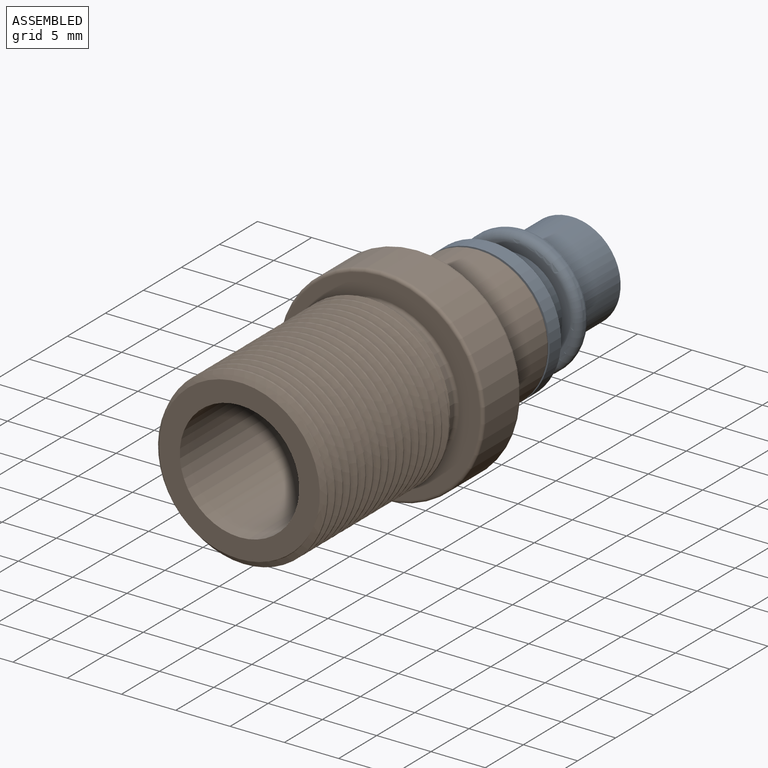
[diagram: assembled view]
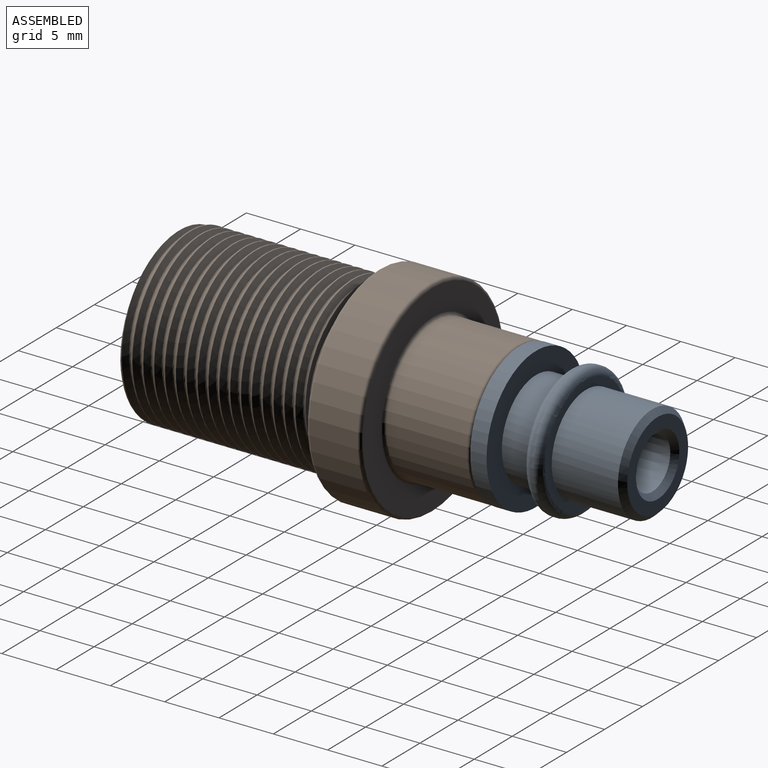
[diagram: assembled view, second angle]
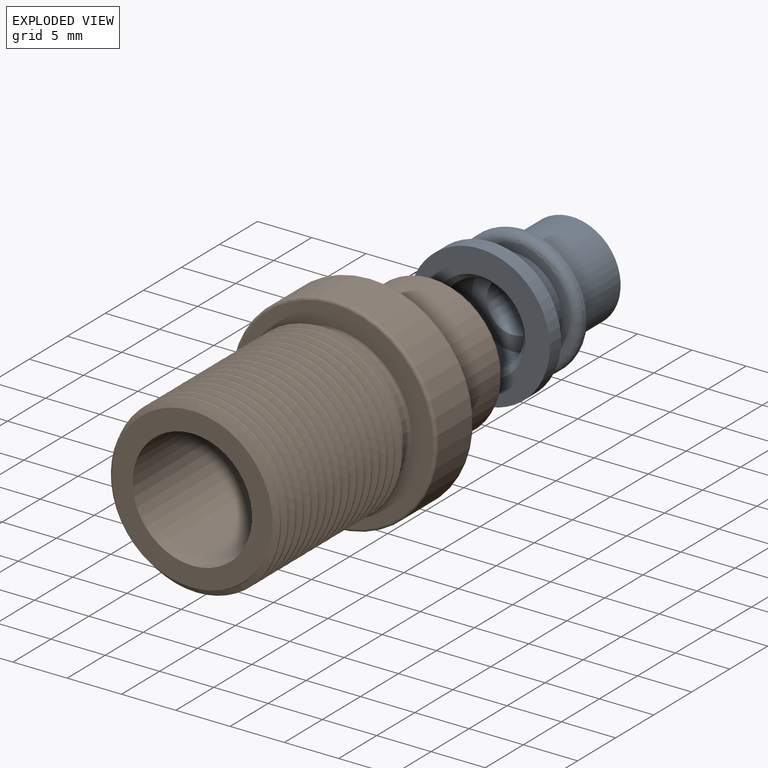
[diagram: exploded view]
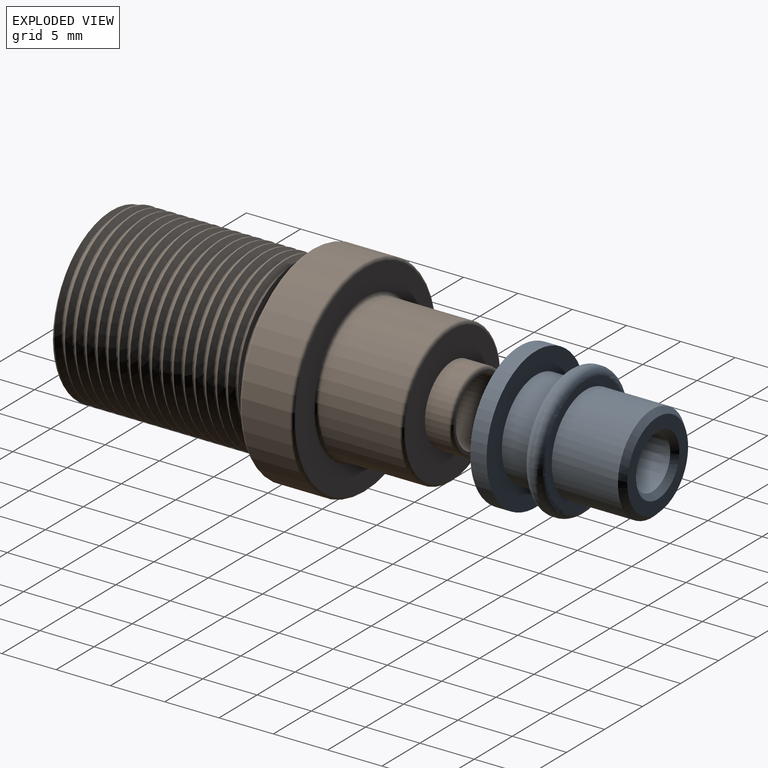
[diagram: exploded view, second angle]
ASSEMBLY  parts=2 mates=2
PART A: 17 faces, bbox 13x13x12.7 mm
  f0: torus R=5.3mm, axis (0,0,-1), area 39.7mm2, adj f1,f2
  f1: cylinder r=6mm len=12mm, axis (0,0,-1), area 7.5mm2, adj f0,f3
  f2: plane 10.6x10.6mm, normal (0,0,-1), area 24.7mm2, adj f0,f5
  f3: torus R=5.3mm, axis (0,0,-1), area 39.7mm2, adj f1,f4
  f4: plane 10.6x10.6mm, normal (0,0,1), area 24.7mm2, adj f3,f6
  f5: cylinder r=4.5mm len=9mm, axis (0,0,-1), area 84.8mm2, adj f2,f7
  f6: cylinder r=4.5mm len=9mm, axis (0,0,-1), area 172.4mm2, adj f4,f8
  f7: plane 13.01x13.01mm, normal (0,0,1), area 69.4mm2, adj f5,f9
  f8: cone r=4mm half-angle=44.6deg, axis (0,0,-1), area 19mm2, adj f6,f10
  f9: cylinder r=6.51mm len=13.01mm, axis (0,0,-1), area 61.3mm2, adj f7,f11
  f10: cone r=2.34mm half-angle=89.6deg, axis (0,0,-1), area 24.9mm2, adj f8,f12
  f11: plane 13.01x13.01mm, normal (0,0,-1), area 76.1mm2, adj f9,f13
  f12: cone r=0mm half-angle=45.4deg, axis (0,0,1), area 11.4mm2, adj f10,f14
  f13: cone r=0mm half-angle=45deg, axis (0,0,-1), area 17.8mm2, adj f11,f15
  f14: cone r=2.35mm half-angle=0.3deg, axis (0,0,-1), area 115.6mm2, adj f12,f16
  f15: cylinder r=3.76mm len=7.51mm, axis (0,0,-1), area 92.7mm2, adj f13,f16
  f16: cone r=2.38mm half-angle=89.6deg, axis (0,0,-1), area 26.4mm2, adj f14,f15
PART B: 24 faces, bbox 20.9x34.7x20.9 mm
  f0: cylinder r=3.1mm len=14mm, axis (0,1,0), area 272.7mm2, adj f15,f22
  f1: cylinder r=7.9mm len=16.75mm, axis (0,1,0), area 143.5mm2, adj f3,f5,f6,f7
  f2: plane 14.9x14.81mm, normal (0,-1,0), area 76mm2, adj f4,f5,f6,f7,f23
  f3: plane 15.52x15.47mm, normal (0,1,0), area 27mm2, adj f1,f4,f5,f6,f8
  f4: bspline ~17.75x16.99mm, area 219mm2, adj f2,f3,f5,f6
  f5: bspline ~18.24x17.81mm, area 504.5mm2, adj f1,f2,f3,f4,f7
  f6: bspline ~18.24x17.48mm, area 506mm2, adj f1,f2,f3,f4,f7
  f7: cone r=7.9mm half-angle=63.4deg, axis (0,1,0), area 11mm2, adj f1,f2,f5,f6
  f8: cylinder r=7mm len=14mm, axis (0,-1,0), area 52.8mm2, adj f3,f21
  f9: cylinder r=9.5mm len=19mm, axis (0,-1,0), area 262.6mm2, adj f19,f20
  f10: plane 18.4x18.4mm, normal (0,1,0), area 120.6mm2, adj f17,f20
  f11: plane 18.4x18.4mm, normal (0,-1,0), area 98.5mm2, adj f19,f21
  f12: cylinder r=6.5mm len=13mm, axis (0,-1,0), area 302.2mm2, adj f17,f18
  f13: plane 12.4x12.4mm, normal (0,1,0), area 80mm2, adj f14,f18
  f14: cylinder r=3.6mm len=7.2mm, axis (0,-1,0), area 49.8mm2, adj f13,f16
  f15: plane 6.6x6.6mm, normal (0,1,0), area 4mm2, adj f0,f16
  f16: torus R=3.3mm, axis (0,1,0), area 10.3mm2, adj f14,f15
  f17: torus R=6.8mm, axis (0,1,0), area 19.6mm2, adj f10,f12
  f18: torus R=6.2mm, axis (0,1,0), area 18.9mm2, adj f12,f13
  f19: torus R=9.2mm, axis (0,1,0), area 27.8mm2, adj f9,f11
  f20: torus R=9.2mm, axis (0,1,0), area 27.8mm2, adj f9,f10
  f21: torus R=7.3mm, axis (0,1,0), area 21mm2, adj f8,f11
  f22: plane 11x11mm, normal (0,-1,0), area 64.8mm2, adj f0,f23
  f23: cylinder r=5.5mm len=20mm, axis (0,-1,0), area 691.2mm2, adj f2,f22
PLACE A rot(axis=(-0.99,0.11,0.11),90.7deg) t=(-7.9,16.16,10.02)mm
PLACE B t=(-7.9,1.66,10.02)mm
MATE cylindrical B.f14 <-> A.f15  axis (0,-1,0) through (-7.9,17.26,10.02)mm
MATE pin_slot A.f15 <-> B.f12  axis (0,-1,0) through (-7.9,16.16,10.02)mm
